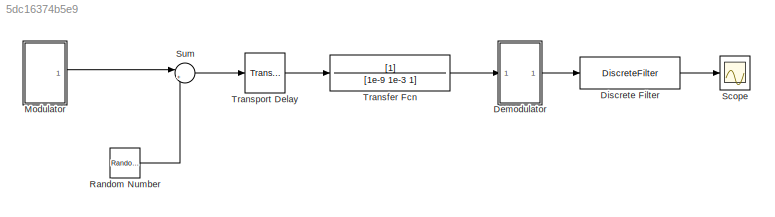
MODEL slx_5dc16374b5e9
KIND model
CONFIG AbsTol = auto
CONFIG EnableMultiTasking = off
CONFIG FixedStep = auto
CONFIG MaxStep = 0.01
CONFIG MinStep = auto
CONFIG RelTol = 1e-6
CONFIG SampleTimeConstraint = Unconstrained
CONFIG Solver = VariableStepAuto
CONFIG SolverName = VariableStepAuto
CONFIG StartTime = 0.0
CONFIG StopTime = 10.0
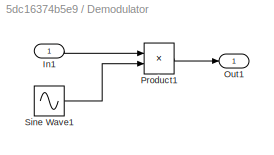
BLOCK [SubSystem] Demodulator
  Ports = [1, 1]
  RequestExecContextInheritance = off
BLOCK [Inport] Demodulator/In1
  IconDisplay = Port number
BLOCK [Outport] Demodulator/Out1
  IconDisplay = Port number
BLOCK [Product] Demodulator/Product1
  InputSameDT = off
  OutDataTypeStr = Inherit: Inherit via internal rule
  Ports = [2, 1]
  RndMeth = Floor
  SaturateOnIntegerOverflow = off
BLOCK [Sin] Demodulator/Sine Wave1
  Frequency = 100
  Ports = [0, 1]
  SampleTime = 0.005
BLOCK [DiscreteFilter] Discrete Filter
  Denominator = [1 -1.6 0.7]
  InputPortMap = u0
  Numerator = [0.04 0.08 0.04]
  Ports = [1, 1]
  SampleTime = 0.005
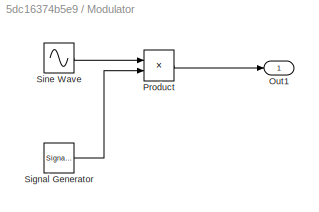
BLOCK [SubSystem] Modulator
  Ports = [0, 1]
  RequestExecContextInheritance = off
BLOCK [Outport] Modulator/Out1
  IconDisplay = Port number
BLOCK [Product] Modulator/Product
  InputSameDT = off
  OutDataTypeStr = Inherit: Inherit via internal rule
  Ports = [2, 1]
  RndMeth = Floor
  SaturateOnIntegerOverflow = off
BLOCK [SignalGenerator] Modulator/Signal Generator
  Ports = [0, 1]
  WaveForm = sawtooth
BLOCK [Sin] Modulator/Sine Wave
  Frequency = 100
  Ports = [0, 1]
  SampleTime = 0
BLOCK [RandomNumber] Random Number
  SampleTime = 0.1
  Variance = 0.01
BLOCK [Scope] Scope
  Floating = off
  NumInputPorts = 1
  Ports = [1]
  ScopeSpecificationString = Simulink.scopes.TimeScopeBlockCfg('CurrentConfiguration', extmgr.ConfigurationSet(extmgr.Configuration('Core','General UI',true),extmgr.Configuration('Core','Source UI',true),extmgr.Configuration('Sources','WiredSimulink',true),extmgr.Configuration('Visuals','Time Domain',true,'SerializedDisplays',{struct('MinYLimReal','-1.20625','MaxYLimReal','1.21571','YLabelReal','','MinYLimMag','0.00000','MaxY...<+1412ch>
BLOCK [Sum] Sum
  IconShape = round
  InputSameDT = off
  Inputs = |++
  OutDataTypeStr = Inherit: Inherit via internal rule
  Ports = [2, 1]
  SaturateOnIntegerOverflow = off
BLOCK [TransferFcn] Transfer Fcn
  Denominator = [1e-9 1e-3 1]
BLOCK [TransportDelay] Transport Delay
  Ports = [1, 1]
LINE Demodulator/In1:1 -> Demodulator/Product1:1
LINE Demodulator/Product1:1 -> Demodulator/Out1:1
LINE Demodulator/Sine Wave1:1 -> Demodulator/Product1:2
LINE Demodulator:1 -> Discrete Filter:1
LINE Discrete Filter:1 -> Scope:1
LINE Modulator/Product:1 -> Modulator/Out1:1
LINE Modulator/Signal Generator:1 -> Modulator/Product:2
LINE Modulator/Sine Wave:1 -> Modulator/Product:1
LINE Modulator:1 -> Sum:1
LINE Random Number:1 -> Sum:2
LINE Sum:1 -> Transport Delay:1
LINE Transfer Fcn:1 -> Demodulator:1
LINE Transport Delay:1 -> Transfer Fcn:1
